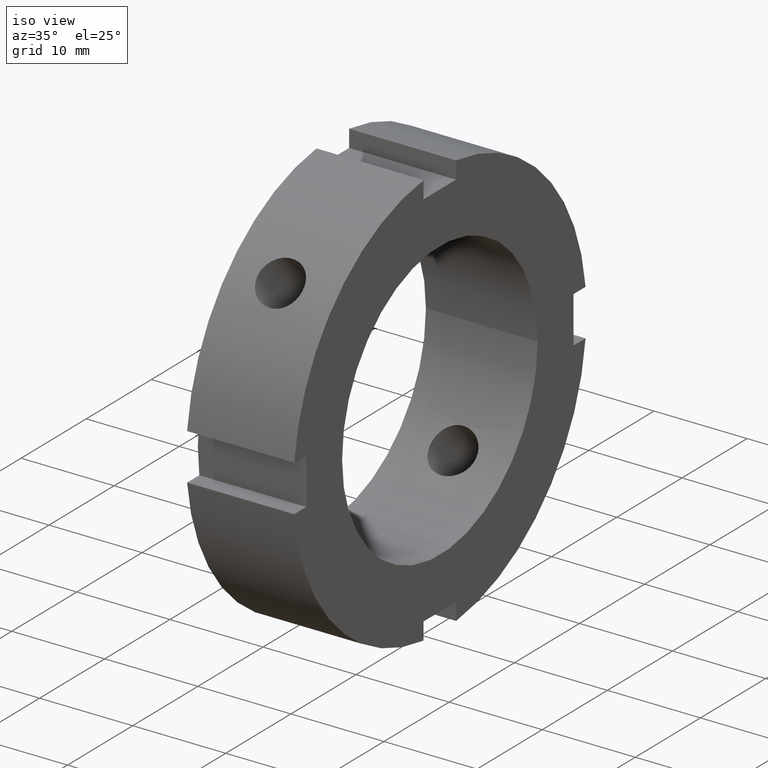
[diagram: clean part render]
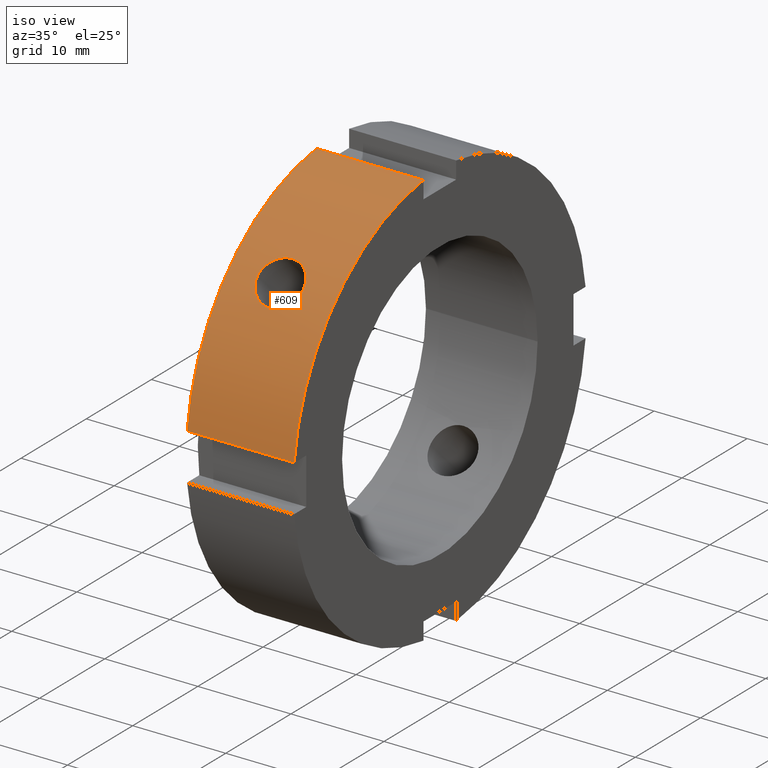
[diagram: same view with one face highlighted and labeled with its STEP entity id]
A machine part, iso view. The second image highlights one B-rep face of the part: STEP entity #609.
In plain terms, the highlighted cylindrical surface (partial cylindrical patch) has radius 22.5 mm, axis along (1, 0, 0).
Its self-contained STEP definition (entity closure, byte-faithful):
#73=CARTESIAN_POINT('',(5.999999999999996,-17.553063619604284,14.076219576510034));
#74=VERTEX_POINT('',#73);
#75=CARTESIAN_POINT('',(5.999999999999996,-17.553063619604284,14.076219576510036));
#76=CARTESIAN_POINT('',(5.691039606320621,-17.553063619604284,14.076219576510036));
#77=CARTESIAN_POINT('',(5.361655301601026,-17.514360679914066,14.124909885660655));
#78=CARTESIAN_POINT('',(4.756005436668370,-17.354900256208232,14.320382198770737));
#79=CARTESIAN_POINT('',(4.479718704991170,-17.233888898292889,14.466891324316510));
#80=CARTESIAN_POINT('',(4.043438312237382,-16.949298990405353,14.799295064858843));
#81=CARTESIAN_POINT('',(3.854271935280003,-16.766650037019623,15.007375209750585));
#82=CARTESIAN_POINT('',(3.603295976404794,-16.356319520886636,15.453565151078960));
#83=CARTESIAN_POINT('',(3.541499999999995,-16.128369504272513,15.691435649122120));
#84=CARTESIAN_POINT('',(3.541499999999997,-15.691435649122106,16.128369504272523));
#85=CARTESIAN_POINT('',(3.603295976404799,-15.453565151078948,16.356319520886650));
#86=CARTESIAN_POINT('',(3.854271935280012,-15.007375209750570,16.766650037019634));
#87=CARTESIAN_POINT('',(4.043438312237382,-14.799295064858828,16.949298990405367));
#88=CARTESIAN_POINT('',(4.479718704991170,-14.466891324316498,17.233888898292903));
#89=CARTESIAN_POINT('',(4.756005436668373,-14.320382198770730,17.354900256208236));
#90=CARTESIAN_POINT('',(5.361655301601026,-14.124909885660649,17.514360679914070));
#91=CARTESIAN_POINT('',(5.691039606320622,-14.076219576510027,17.553063619604295));
#92=CARTESIAN_POINT('',(6.308960393679369,-14.076219576510027,17.553063619604295));
#93=CARTESIAN_POINT('',(6.638344698398967,-14.124909885660648,17.514360679914070));
#94=CARTESIAN_POINT('',(7.243994563331620,-14.320382198770726,17.354900256208236));
#95=CARTESIAN_POINT('',(7.520281295008823,-14.466891324316499,17.233888898292903));
#96=CARTESIAN_POINT('',(7.956561687762611,-14.799295064858828,16.949298990405364));
#97=CARTESIAN_POINT('',(8.145728064719982,-15.007375209750576,16.766650037019634));
#98=CARTESIAN_POINT('',(8.396704023595195,-15.453565151078950,16.356319520886647));
#99=CARTESIAN_POINT('',(8.458499999999996,-15.691435649122106,16.128369504272523));
#100=CARTESIAN_POINT('',(8.458499999999997,-16.128369504272513,15.691435649122120));
#101=CARTESIAN_POINT('',(8.396704023595197,-16.356319520886633,15.453565151078960));
#102=CARTESIAN_POINT('',(8.145728064719988,-16.766650037019623,15.007375209750581));
#103=CARTESIAN_POINT('',(7.956561687762614,-16.949298990405353,14.799295064858843));
#104=CARTESIAN_POINT('',(7.520281295008823,-17.233888898292889,14.466891324316510));
#105=CARTESIAN_POINT('',(7.243994563331623,-17.354900256208229,14.320382198770737));
#106=CARTESIAN_POINT('',(6.638344698398967,-17.514360679914066,14.124909885660655));
#107=CARTESIAN_POINT('',(6.308960393679372,-17.553063619604284,14.076219576510036));
#108=CARTESIAN_POINT('',(5.999999999999997,-17.553063619604284,14.076219576510036));
#109=B_SPLINE_CURVE_WITH_KNOTS('',3,(#75,#76,#77,#78,#79,#80,#81,#82,#83,#84,#85,#86,#87,#88,#89,#90,#91,#92,#93,#94,#95,#96,#97,#98,#99,#100,#101,#102,#103,#104,#105,#106,#107,#108),.UNSPECIFIED.,.T.,.U.,(4,2,2,2,2,2,2,2,2,2,2,2,2,2,2,2,4),(0.0,0.092688118103812,0.185376236207624,0.278063903779674,0.370751571351724,0.463439238923774,0.556126906495824,0.648815024599635,0.741503142703447,0.834191260807259,0.926879378911071,1.019567046483121,1.112254714055170,1.204942381627220,1.297630049199270,1.390318167303082,1.483006285406894),.UNSPECIFIED.);
#110=EDGE_CURVE('',#74,#74,#109,.T.);
#353=CARTESIAN_POINT('',(0.499999999999994,-22.360679774997894,2.500000000000002));
#354=VERTEX_POINT('',#353);
#369=CARTESIAN_POINT('',(11.999999999999996,-22.360679774997894,2.500000000000002));
#370=VERTEX_POINT('',#369);
#377=CARTESIAN_POINT('',(0.499999999999994,-22.360679774997894,2.500000000000002));
#378=DIRECTION('',(1.0,0.0,0.0));
#379=VECTOR('',#378,11.500000000000004);
#380=LINE('',#377,#379);
#381=EDGE_CURVE('',#354,#370,#380,.T.);
#493=CARTESIAN_POINT('',(0.499999999999994,-2.499999999999998,22.360679774997894));
#494=VERTEX_POINT('',#493);
#503=CARTESIAN_POINT('',(11.999999999999996,-2.499999999999998,22.360679774997894));
#504=VERTEX_POINT('',#503);
#505=CARTESIAN_POINT('',(11.999999999999996,-2.499999999999997,22.360679774997894));
#506=DIRECTION('',(-1.0,0.0,0.0));
#507=VECTOR('',#506,11.500000000000004);
#508=LINE('',#505,#507);
#509=EDGE_CURVE('',#504,#494,#508,.T.);
#583=CARTESIAN_POINT('',(6.249999999999996,0.0,0.0));
#584=DIRECTION('',(1.0,0.0,0.0));
#585=DIRECTION('',(0.0,1.0,0.0));
#586=AXIS2_PLACEMENT_3D('',#583,#584,#585);
#587=CYLINDRICAL_SURFACE('',#586,22.499999999999996);
#588=ORIENTED_EDGE('',*,*,#381,.T.);
#589=CARTESIAN_POINT('',(11.999999999999996,0.0,0.0));
#590=DIRECTION('',(1.0,0.0,0.0));
#591=DIRECTION('',(0.0,1.0,0.0));
#592=AXIS2_PLACEMENT_3D('',#589,#590,#591);
#593=CIRCLE('',#592,22.499999999999996);
#594=EDGE_CURVE('',#504,#370,#593,.T.);
#595=ORIENTED_EDGE('',*,*,#594,.F.);
#596=ORIENTED_EDGE('',*,*,#509,.T.);
#597=CARTESIAN_POINT('',(0.499999999999994,0.0,0.0));
#598=DIRECTION('',(1.0,0.0,0.0));
#599=DIRECTION('',(0.0,1.0,0.0));
#600=AXIS2_PLACEMENT_3D('',#597,#598,#599);
#601=CIRCLE('',#600,22.499999999999996);
#602=EDGE_CURVE('',#494,#354,#601,.T.);
#603=ORIENTED_EDGE('',*,*,#602,.T.);
#604=EDGE_LOOP('',(#588,#595,#596,#603));
#605=FACE_OUTER_BOUND('',#604,.T.);
#606=ORIENTED_EDGE('',*,*,#110,.T.);
#607=EDGE_LOOP('',(#606));
#608=FACE_BOUND('',#607,.T.);
#609=ADVANCED_FACE('',(#605,#608),#587,.T.);